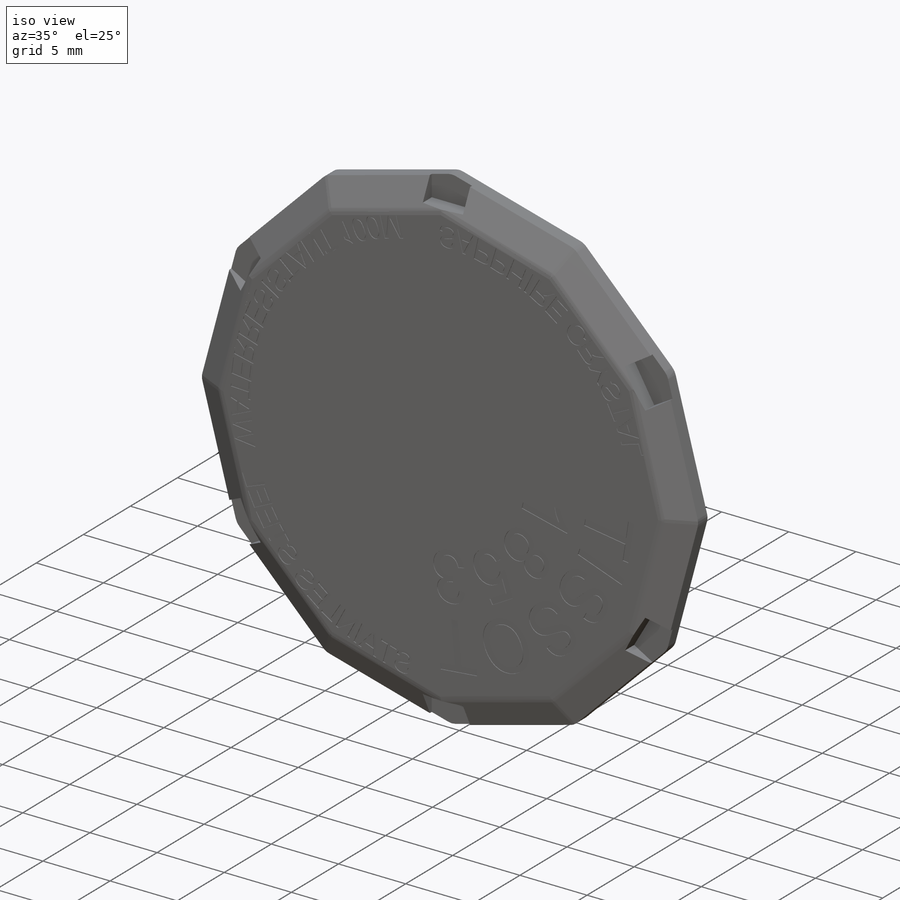
[diagram: iso view]
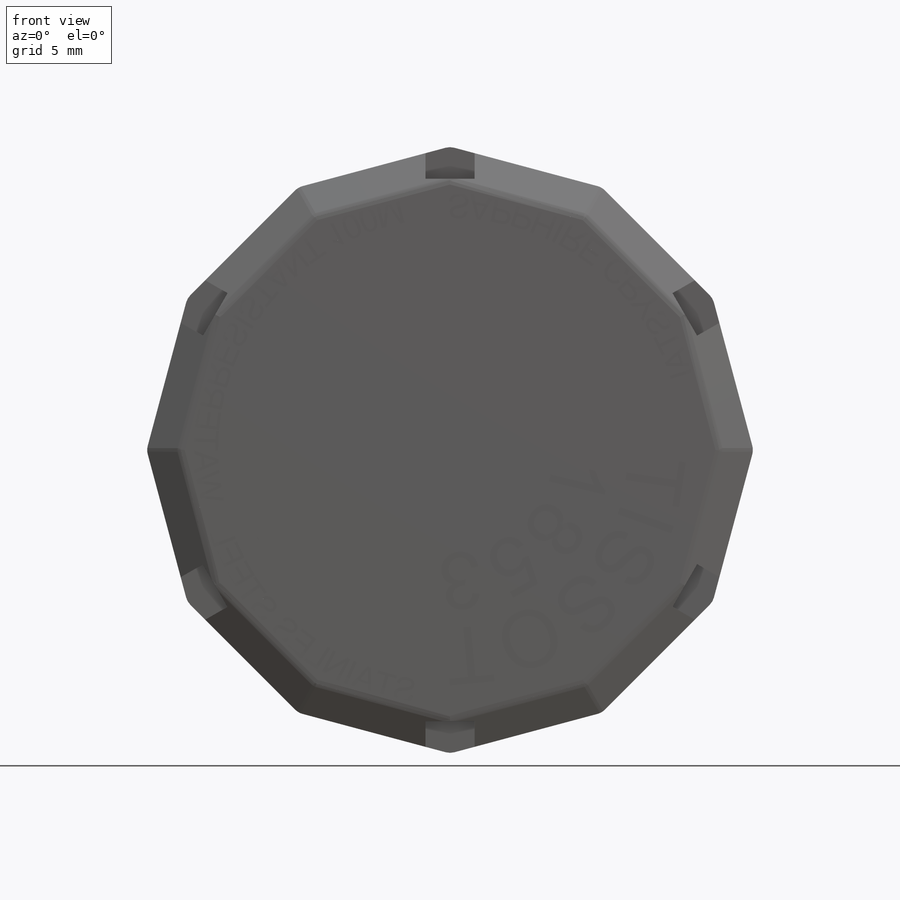
[diagram: front view]
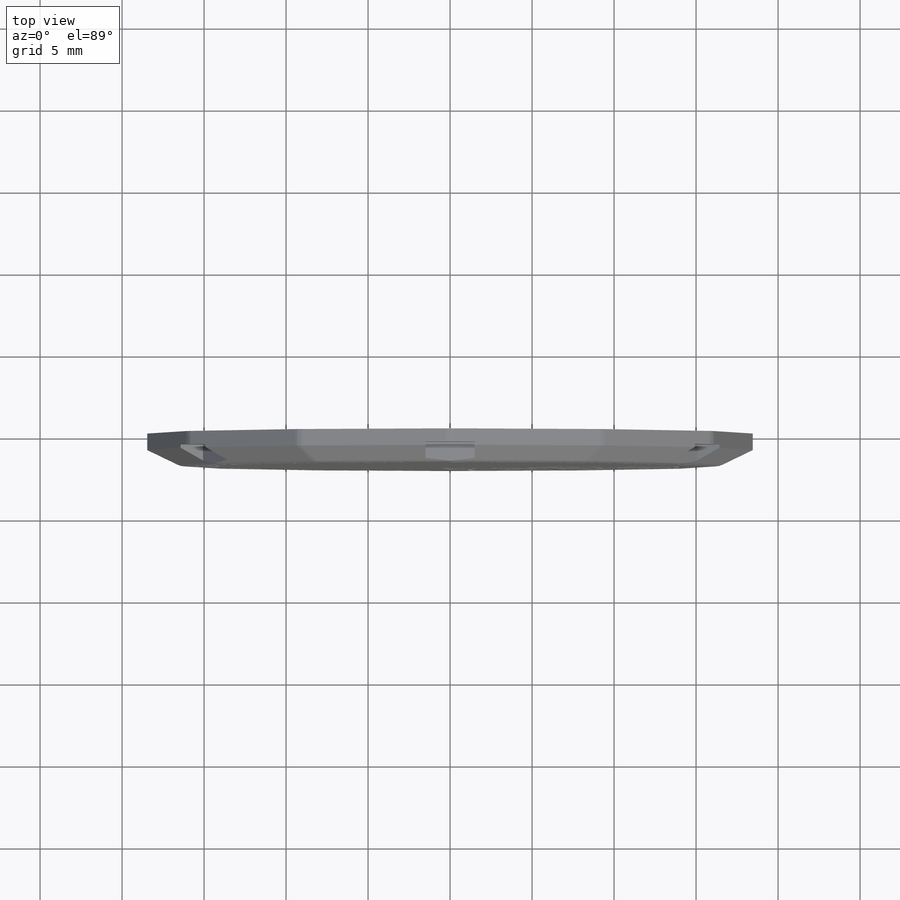
[diagram: top view]
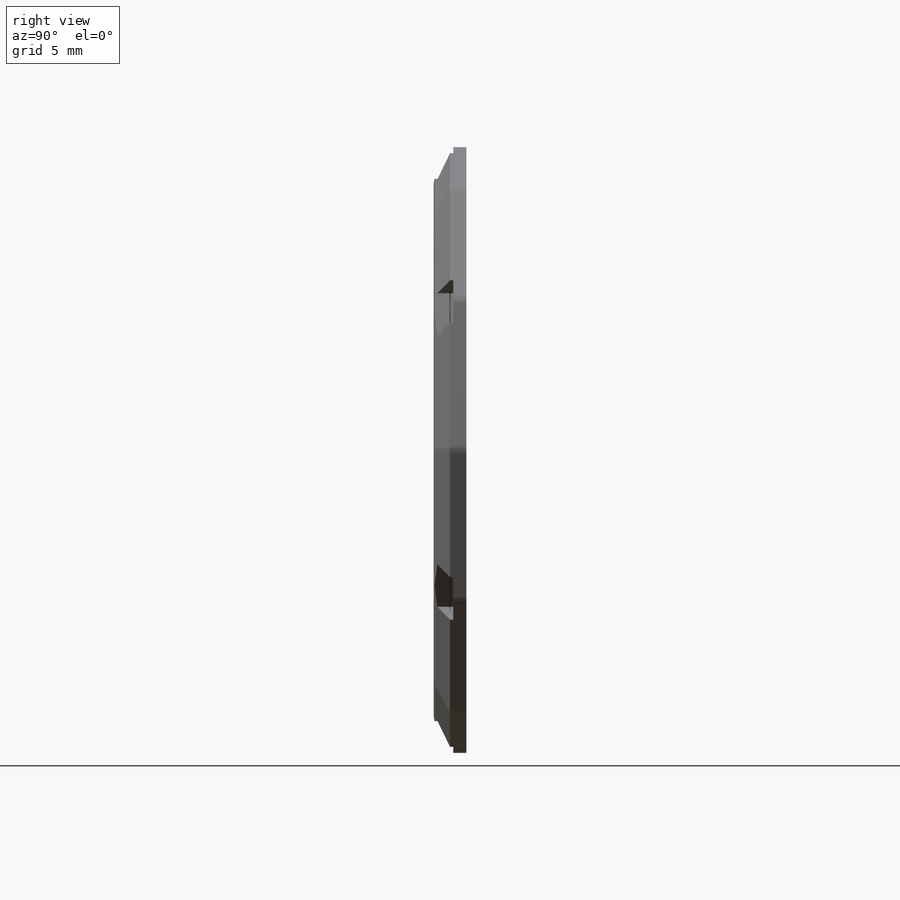
[diagram: right view]
SOLIDWORKS PART (.sldprt)
format: sldprt  version: not decoded by parser v0  size: 1,277,440 bytes
history: native  units: mm
features: sketch x7, cut_extrude x5, fillet x2, material x1, extrude x1, chamfer x1, pattern_circular x1 (+11 scaffold rows collapsed)
feature tree (29):
  scaffold x11  (default folders/planes/origin — collapsed)
  material  "Material <not specified>"
  sketch  "Sketch1"
  extrude  "Boss-Extrude1"  Depth=2mm
  chamfer  "Chamfer1"  Distance=1mm
  sketch  "Sketch2"  dims[D1=0.1mm]
  cut_extrude  "Cut-Extrude1"  Depth=1mm
  sketch  "Sketch3"  dims[D1=~2.995287mm]
  cut_extrude  "Cut-Extrude2"  Depth=1.2mm
  pattern_circular  "CirPattern1"  Count=6 Angle=360deg
  fillet  "Fillet1"  Radius=1mm
  fillet  "Fillet2"  Radius=1mm
  sketch  "Sketch4"
  cut_extrude  "Cut-Extrude3"  Depth=0.05mm
  sketch  "Sketch7"
  cut_extrude  "Cut-Extrude5"  Depth=0.05mm
  sketch  "Sketch8"
  cut_extrude  "Cut-Extrude6"  Depth=0.05mm
  sketch  "Sketch9"
decode coverage: 12 of 17 modeling features carry decoded parameters
note: ~ marks probable driven/reference dimensions
note: suppression state not decoded; provenance and decode notes live in map.json
